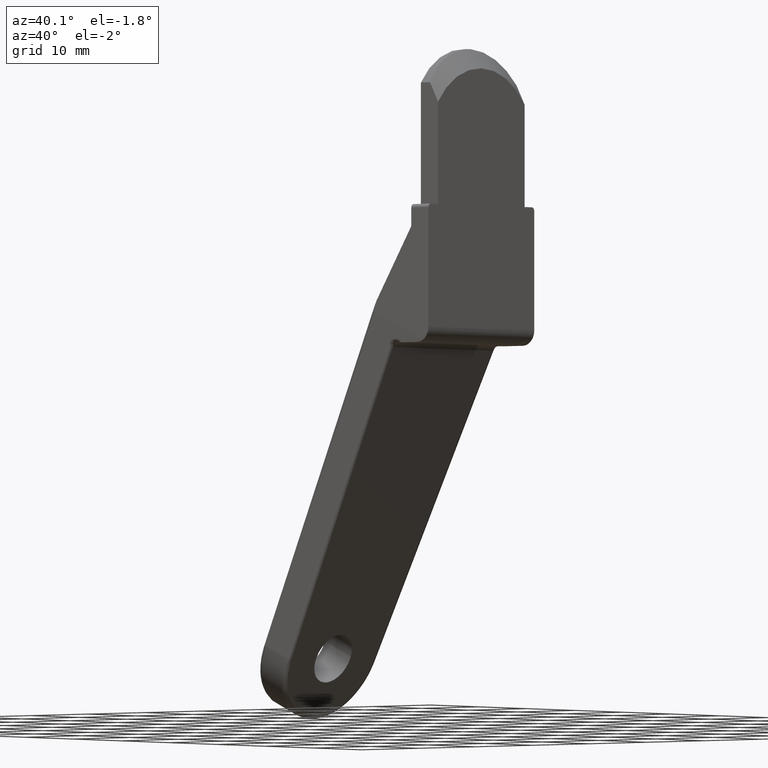
[diagram: clean part render]
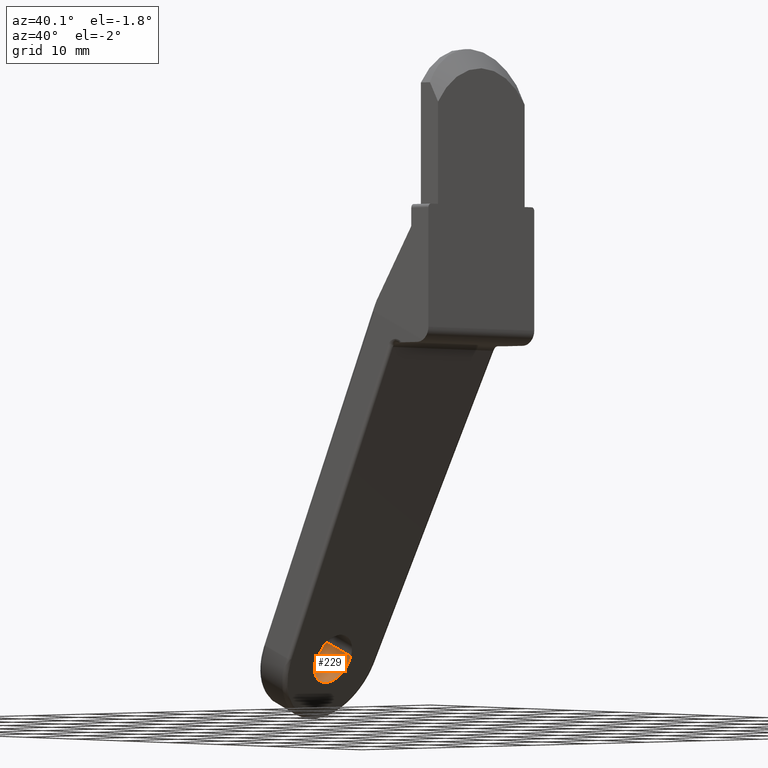
[diagram: same view with one face highlighted and labeled with its STEP entity id]
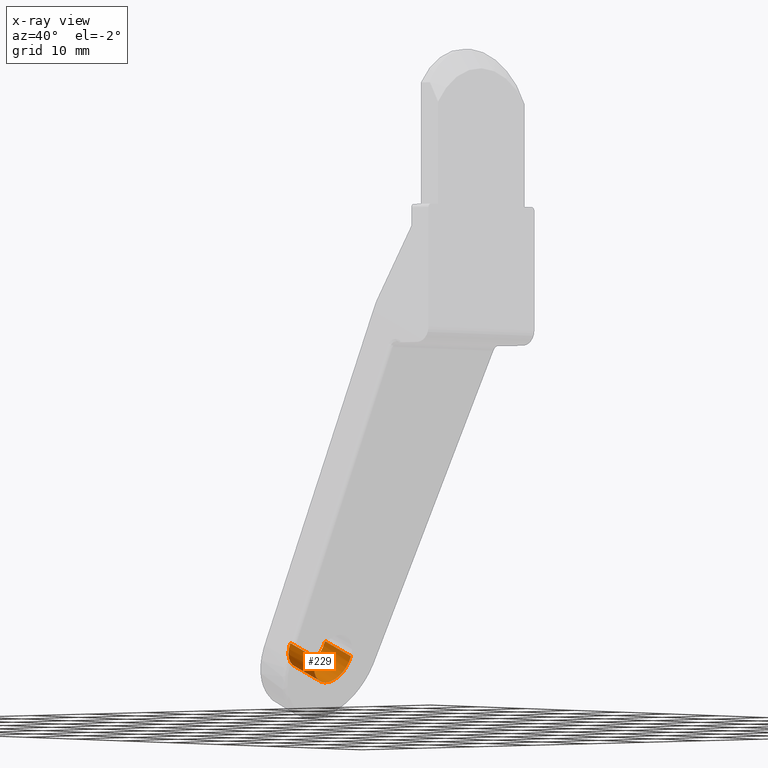
[diagram: x-ray of the same camera — body ghosted, the highlighted face saturated]
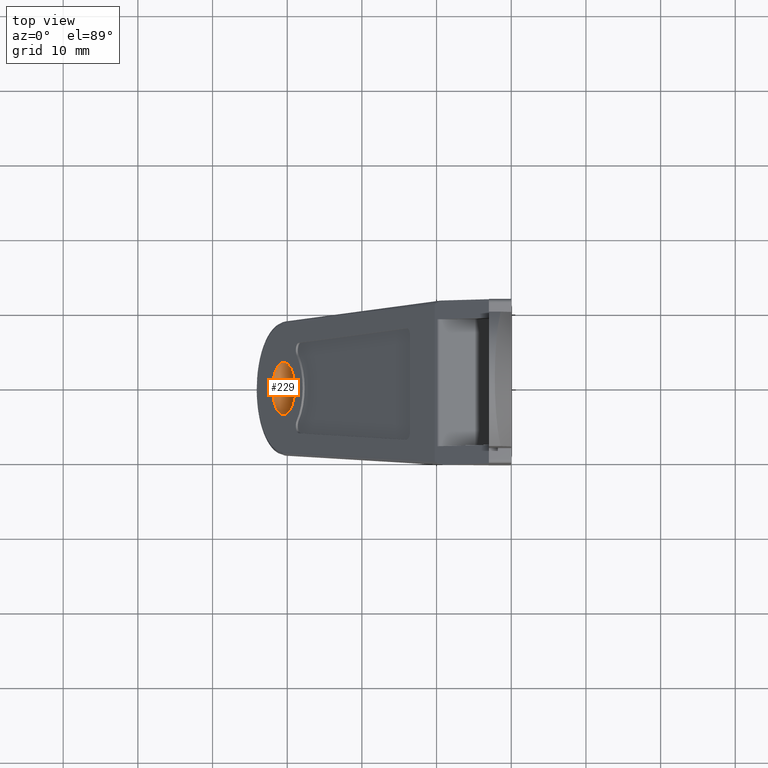
[diagram: same view with one face highlighted and labeled with its STEP entity id]
A machine part, auxiliary view. The second image highlights one B-rep face of the part: STEP entity #229.
The next image is the same camera in x-ray: the body ghosted, the highlighted face saturated — about 0% of this face is hidden behind the body in this view.
A second angle (top view) of the same face is appended — the face is thin or edge-on in the first view.
In plain terms, the highlighted face is a freeform B-spline surface patch.
Its self-contained STEP definition (entity closure, byte-faithful):
#62=CARTESIAN_POINT('',(-30.288373101777442,3.472931748367618,-67.683323056339034));
#63=VERTEX_POINT('',#62);
#79=CARTESIAN_POINT('',(-25.756834234287091,3.472931748359011,-69.796414302988239));
#80=VERTEX_POINT('',#79);
#81=CARTESIAN_POINT('',(-30.288373101777442,3.472931748367618,-67.683323056339034));
#82=CARTESIAN_POINT('',(-25.756834234287091,3.472931748359011,-69.796414302988239));
#83=QUASI_UNIFORM_CURVE('',1,(#81,#82),.UNSPECIFIED.,.F.,.U.);
#84=EDGE_CURVE('',#63,#80,#83,.T.);
#101=CARTESIAN_POINT('',(-25.953347869545031,-3.499866730721470,-70.217839161791403));
#102=VERTEX_POINT('',#101);
#118=CARTESIAN_POINT('',(-30.484886737768800,-3.499866730721168,-68.104747914762385));
#119=VERTEX_POINT('',#118);
#120=CARTESIAN_POINT('',(-30.484886737768800,-3.499866730721168,-68.104747914762385));
#121=CARTESIAN_POINT('',(-25.953347869545031,-3.499866730721470,-70.217839161791403));
#122=QUASI_UNIFORM_CURVE('',1,(#120,#121),.UNSPECIFIED.,.F.,.U.);
#123=EDGE_CURVE('',#119,#102,#122,.T.);
#143=CARTESIAN_POINT('',(-30.598175209447369,-3.499866730724599,-68.051920633164443));
#144=CARTESIAN_POINT('',(-32.077282786024426,-3.469323856480290,-71.223877112964445));
#145=CARTESIAN_POINT('',(-32.064374809755321,0.030542874244309,-71.196195868127191));
#146=CARTESIAN_POINT('',(-32.051466833486224,3.530409604968907,-71.168514623289937));
#147=CARTESIAN_POINT('',(-30.572359256909170,3.499866730724599,-67.996558143489935));
#148=CARTESIAN_POINT('',(-30.486680724210995,3.498097509410965,-67.812819934535128));
#149=CARTESIAN_POINT('',(-30.401661573695716,3.472931748389385,-67.630495775255156));
#150=CARTESIAN_POINT('',(-25.837227180172189,-3.499866730724599,-70.271987127341092));
#151=CARTESIAN_POINT('',(-27.316334756749239,-3.469323856480290,-73.443943607141108));
#152=CARTESIAN_POINT('',(-27.303426780480141,0.030542874244309,-73.416262362303840));
#153=CARTESIAN_POINT('',(-27.290518804211047,3.530409604968907,-73.388581117466600));
#154=CARTESIAN_POINT('',(-25.811411227633990,3.499866730724599,-70.216624637666584));
#155=CARTESIAN_POINT('',(-25.725732694935804,3.498097509410965,-70.032886428711791));
#156=CARTESIAN_POINT('',(-25.640713544420525,3.472931748389385,-69.850562269431805));
#164=(BOUNDED_SURFACE()B_SPLINE_SURFACE(2,1,((#143,#150),(#144,#151),(#145,#152),(#146,#153),(#147,#154),(#148,#155),(#149,#156)),.UNSPECIFIED.,.F.,.F.,.U.)B_SPLINE_SURFACE_WITH_KNOTS((3,2,2,3),(2,2),(0.0,5.798989873223329,11.597979746446660,12.061898936304530),(0.0,5.253124915326603),.UNSPECIFIED.)GEOMETRIC_REPRESENTATION_ITEM()RATIONAL_B_SPLINE_SURFACE(((1.0,1.0),(0.707106781186548,0.707106781186548),(1.0,1.0),(0.707106781186548,0.707106781186548),(1.0,1.0),(0.976568542494924,0.976568542494924),(0.956886118190660,0.956886118190660)))REPRESENTATION_ITEM('')SURFACE());
#165=CARTESIAN_POINT('',(-31.951142659939450,0.0,-71.249143932351188));
#166=VERTEX_POINT('',#165);
#167=CARTESIAN_POINT('',(-31.951142659939450,0.0,-71.249143932351188));
#168=CARTESIAN_POINT('',(-31.951142659939453,3.500000000000000,-71.249143932351188));
#169=CARTESIAN_POINT('',(-30.471978761333549,3.500000000000000,-68.077066669568794));
#170=CARTESIAN_POINT('',(-30.379819561746341,3.500000000000000,-67.879430625420923));
#171=CARTESIAN_POINT('',(-30.288373101777434,3.472931748367618,-67.683323056339034));
#179=(BOUNDED_CURVE()B_SPLINE_CURVE(2,(#167,#168,#169,#170,#171),.UNSPECIFIED.,.F.,.U.)B_SPLINE_CURVE_WITH_KNOTS((3,2,3),(0.500000000000000,0.750000000000000,0.771473928987602),.UNSPECIFIED.)CURVE()GEOMETRIC_REPRESENTATION_ITEM()RATIONAL_B_SPLINE_CURVE((1.0,0.707106781186547,1.0,0.974841727272999,0.954005430241920))REPRESENTATION_ITEM(''));
#180=EDGE_CURVE('',#166,#63,#179,.T.);
#181=ORIENTED_EDGE('',*,*,#180,.F.);
#182=CARTESIAN_POINT('',(-30.484886737768807,-3.499866730721168,-68.104747914762385));
#183=CARTESIAN_POINT('',(-31.951142659939457,-3.469589236302817,-71.249143932351203));
#184=CARTESIAN_POINT('',(-31.951142659939450,0.0,-71.249143932351188));
#192=(BOUNDED_CURVE()B_SPLINE_CURVE(2,(#182,#183,#184),.UNSPECIFIED.,.F.,.U.)B_SPLINE_CURVE_WITH_KNOTS((3,3),(0.251539894374564,0.500000000000000),.UNSPECIFIED.)CURVE()GEOMETRIC_REPRESENTATION_ITEM()RATIONAL_B_SPLINE_CURVE((0.996414028008813,0.708910879666543,1.0))REPRESENTATION_ITEM(''));
#193=EDGE_CURVE('',#119,#166,#192,.T.);
#194=ORIENTED_EDGE('',*,*,#193,.F.);
#195=ORIENTED_EDGE('',*,*,#123,.T.);
#196=CARTESIAN_POINT('',(-27.419603786149871,0.0,-73.362235182013677));
#197=VERTEX_POINT('',#196);
#198=CARTESIAN_POINT('',(-27.419603786149871,0.0,-73.362235182013677));
#199=CARTESIAN_POINT('',(-27.419603786149867,-3.469589236371284,-73.362235182013677));
#200=CARTESIAN_POINT('',(-25.953347869545031,-3.499866730721470,-70.217839161791403));
#208=(BOUNDED_CURVE()B_SPLINE_CURVE(2,(#198,#199,#200),.UNSPECIFIED.,.F.,.U.)B_SPLINE_CURVE_WITH_KNOTS((3,3),(0.0,0.248460105628911),.UNSPECIFIED.)CURVE()GEOMETRIC_REPRESENTATION_ITEM()RATIONAL_B_SPLINE_CURVE((1.0,0.708910879662471,0.996414028016857))REPRESENTATION_ITEM(''));
#209=EDGE_CURVE('',#197,#102,#208,.T.);
#210=ORIENTED_EDGE('',*,*,#209,.F.);
#211=CARTESIAN_POINT('',(-25.756834234287098,3.472931748359012,-69.796414302988239));
#212=CARTESIAN_POINT('',(-25.848280693907629,3.499999999999999,-69.992521872231691));
#213=CARTESIAN_POINT('',(-25.940439893173501,3.500000000000000,-70.190157916606196));
#214=CARTESIAN_POINT('',(-27.419603786149878,3.500000000000000,-73.362235182013677));
#215=CARTESIAN_POINT('',(-27.419603786149871,0.0,-73.362235182013677));
#223=(BOUNDED_CURVE()B_SPLINE_CURVE(2,(#211,#212,#213,#214,#215),.UNSPECIFIED.,.F.,.U.)B_SPLINE_CURVE_WITH_KNOTS((3,2,3),(0.728526071005717,0.750000000000000,1.0),.UNSPECIFIED.)CURVE()GEOMETRIC_REPRESENTATION_ITEM()RATIONAL_B_SPLINE_CURVE((0.954005430228955,0.974841727265172,1.0,0.707106781186547,1.0))REPRESENTATION_ITEM(''));
#224=EDGE_CURVE('',#80,#197,#223,.T.);
#225=ORIENTED_EDGE('',*,*,#224,.F.);
#226=ORIENTED_EDGE('',*,*,#84,.F.);
#227=EDGE_LOOP('',(#181,#194,#195,#210,#225,#226));
#228=FACE_OUTER_BOUND('',#227,.T.);
#229=ADVANCED_FACE('',(#228),#164,.F.);